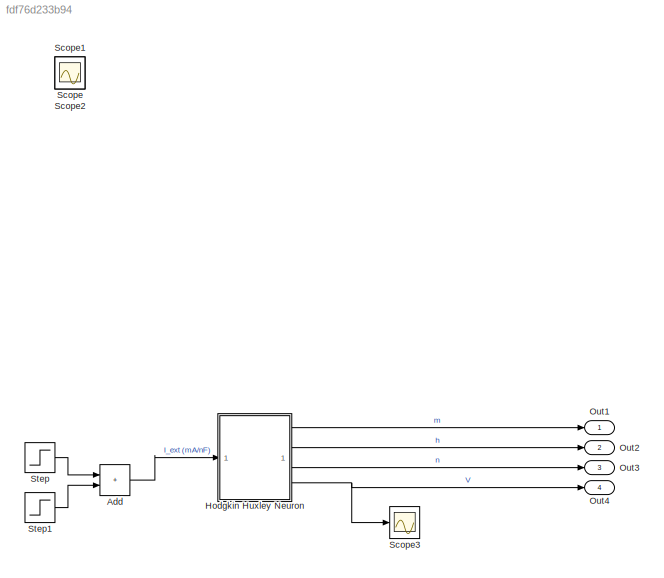
MODEL slx_fdf76d233b94
KIND model
CONFIG AbsTol = auto
CONFIG EnableMultiTasking = off
CONFIG FixedStep = auto
CONFIG MaxStep = auto
CONFIG MinStep = auto
CONFIG RelTol = 1e-3
CONFIG SampleTimeConstraint = Unconstrained
CONFIG SolverName = VariableStepAuto
CONFIG StartTime = 0.0
CONFIG StopTime = 600e-3
BLOCK [Sum] Add
  IconShape = rectangular
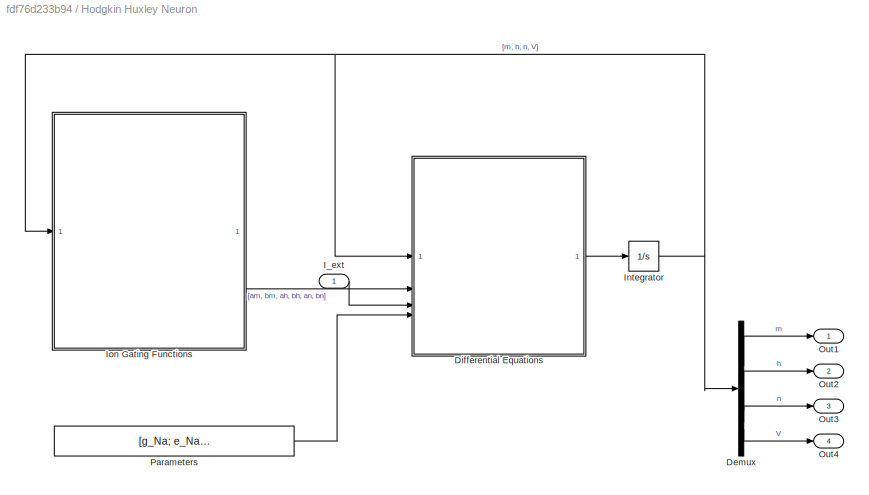
BLOCK [SubSystem] Hodgkin Huxley Neuron
  TreatAsAtomicUnit = on
BLOCK [Demux] Hodgkin Huxley Neuron/Demux
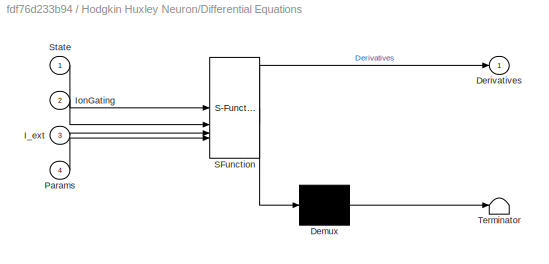
BLOCK [SubSystem] Hodgkin Huxley Neuron/Differential Equations
  ErrorFcn = Stateflow.Translate.translate
  LibrarySourceBlock = simulink/User-Defined\nFunctions/MATLAB Function
  PermitHierarchicalResolution = ExplicitOnly
  SFBlockType = MATLAB Function
  TreatAsAtomicUnit = on
BLOCK [Demux] Hodgkin Huxley Neuron/Differential Equations/ Demux 
  Outputs = 1
BLOCK [S-Function] Hodgkin Huxley Neuron/Differential Equations/ SFunction 
  EnableBusSupport = on
  FunctionName = sf_sfun
  PortCounts = [4 2]
  SFcnIsStateOwnerBlock = off
  SFunctionDeploymentMode = off
  Tag = Stateflow S-Function 1
BLOCK [Terminator] Hodgkin Huxley Neuron/Differential Equations/ Terminator 
BLOCK [Outport] Hodgkin Huxley Neuron/Differential Equations/Derivatives
BLOCK [Inport] Hodgkin Huxley Neuron/Differential Equations/I_ext
  Port = 3
BLOCK [Inport] Hodgkin Huxley Neuron/Differential Equations/IonGating
  Port = 2
BLOCK [Inport] Hodgkin Huxley Neuron/Differential Equations/Params
  Port = 4
BLOCK [Inport] Hodgkin Huxley Neuron/Differential Equations/State
BLOCK [Inport] Hodgkin Huxley Neuron/I_ext
BLOCK [Integrator] Hodgkin Huxley Neuron/Integrator
  InitialCondition = [m0 h0 n0 V0]
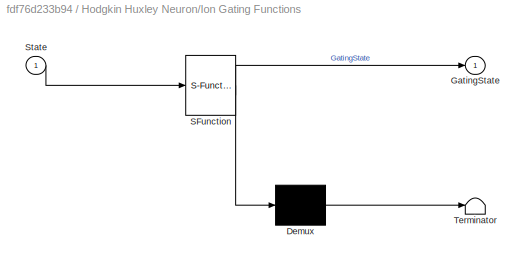
BLOCK [SubSystem] Hodgkin Huxley Neuron/Ion Gating Functions
  ErrorFcn = Stateflow.Translate.translate
  PermitHierarchicalResolution = ExplicitOnly
  SFBlockType = MATLAB Function
  TreatAsAtomicUnit = on
BLOCK [Demux] Hodgkin Huxley Neuron/Ion Gating Functions/ Demux 
  Outputs = 1
BLOCK [S-Function] Hodgkin Huxley Neuron/Ion Gating Functions/ SFunction 
  EnableBusSupport = on
  FunctionName = sf_sfun
  PortCounts = [1 2]
  SFcnIsStateOwnerBlock = off
  SFunctionDeploymentMode = off
  Tag = Stateflow S-Function 2
BLOCK [Terminator] Hodgkin Huxley Neuron/Ion Gating Functions/ Terminator 
BLOCK [Outport] Hodgkin Huxley Neuron/Ion Gating Functions/GatingState
  VectorParamsAs1DForOutWhenUnconnected = off
BLOCK [Inport] Hodgkin Huxley Neuron/Ion Gating Functions/State
BLOCK [Outport] Hodgkin Huxley Neuron/Out1
BLOCK [Outport] Hodgkin Huxley Neuron/Out2
  Port = 2
BLOCK [Outport] Hodgkin Huxley Neuron/Out3
  Port = 3
BLOCK [Outport] Hodgkin Huxley Neuron/Out4
  Port = 4
BLOCK [Constant] Hodgkin Huxley Neuron/Parameters
  Value = [g_Na; e_Na; g_K; e_K; g_L; e_L]
BLOCK [Outport] Out1
  SignalName = m
BLOCK [Outport] Out2
  Port = 2
  SignalName = h
BLOCK [Outport] Out3
  Port = 3
  SignalName = n
BLOCK [Outport] Out4
  Port = 4
  SignalName = V (mV)
BLOCK [Scope] Scope
  Floating = off
  IOType = viewer
  NumInputPorts = 1
  ScopeSpecificationString = Simulink.scopes.TimeScopeBlockCfg('CurrentConfiguration', extmgr.ConfigurationSet(extmgr.Configuration('Core','General UI',true),extmgr.Configuration('Core','Source UI',true),extmgr.Configuration('Sources','WiredSimulink',true),extmgr.Configuration('Visuals','Time Domain',true,'SerializedDisplays',{struct('MinYLimReal','-110295.27373','MaxYLimReal','319563.83247','YLabelReal','','MinYLimMag','    ...<+1505ch>
BLOCK [Scope] Scope1
  Floating = off
  IOType = viewer
  NumInputPorts = 1
  ScopeSpecificationString = Simulink.scopes.TimeScopeBlockCfg('CurrentConfiguration', extmgr.ConfigurationSet(extmgr.Configuration('Core','General UI',true),extmgr.Configuration('Core','Source UI',true),extmgr.Configuration('Sources','WiredSimulink',true,'DataLoggingVariableName','ScopeData1'),extmgr.Configuration('Visuals','Time Domain',true,'SerializedDisplays',{struct('MinYLimReal','-0.97982','MaxYLimReal','8.82236','YLab...<+1585ch>
BLOCK [Scope] Scope2
  Floating = off
  IOType = viewer
  NumInputPorts = 1
  ScopeSpecificationString = Simulink.scopes.TimeScopeBlockCfg('CurrentConfiguration', extmgr.ConfigurationSet(extmgr.Configuration('Core','General UI',true),extmgr.Configuration('Core','Source UI',true),extmgr.Configuration('Sources','WiredSimulink',true,'DataLoggingVariableName','ScopeData2'),extmgr.Configuration('Visuals','Time Domain',true,'SerializedDisplays',{struct('MinYLimReal','-24.95995','MaxYLimReal','117.65171','Y...<+1412ch>
BLOCK [Scope] Scope3
  Floating = off
  NumInputPorts = 1
  ScopeSpecificationString = Simulink.scopes.TimeScopeBlockCfg('CurrentConfiguration', extmgr.ConfigurationSet(extmgr.Configuration('Core','General UI',true),extmgr.Configuration('Core','Source UI',true),extmgr.Configuration('Sources','WiredSimulink',true,'DataLoggingVariableName','ScopeData1'),extmgr.Configuration('Visuals','Time Domain',true,'SerializedDisplays',{struct('MinYLimReal','-24.95995','MaxYLimReal','117.65171','Y...<+1370ch>
BLOCK [Step] Step
  After = 4
  SampleTime = 0
  Time = 250e-3
BLOCK [Step] Step1
  After = -4
  SampleTime = 0
  Time = 350e-3
LINE Add:1 -> Hodgkin Huxley Neuron:1
LINE Hodgkin Huxley Neuron/Demux:1 -> Hodgkin Huxley Neuron/Out1:1
LINE Hodgkin Huxley Neuron/Demux:2 -> Hodgkin Huxley Neuron/Out2:1
LINE Hodgkin Huxley Neuron/Demux:3 -> Hodgkin Huxley Neuron/Out3:1
LINE Hodgkin Huxley Neuron/Demux:4 -> Hodgkin Huxley Neuron/Out4:1
LINE Hodgkin Huxley Neuron/Differential Equations:1 -> Hodgkin Huxley Neuron/Integrator:1
LINE Hodgkin Huxley Neuron/I_ext:1 -> Hodgkin Huxley Neuron/Differential Equations:3
NET Hodgkin Huxley Neuron/Integrator:1 -> Hodgkin Huxley Neuron/Demux:1, Hodgkin Huxley Neuron/Differential Equations:1, Hodgkin Huxley Neuron/Ion Gating Functions:1
LINE Hodgkin Huxley Neuron/Ion Gating Functions:1 -> Hodgkin Huxley Neuron/Differential Equations:2
LINE Hodgkin Huxley Neuron/Parameters:1 -> Hodgkin Huxley Neuron/Differential Equations:4
LINE Hodgkin Huxley Neuron:1 -> Out1:1
LINE Hodgkin Huxley Neuron:2 -> Out2:1
LINE Hodgkin Huxley Neuron:3 -> Out3:1
NET Hodgkin Huxley Neuron:4 -> Out4:1, Scope3:1
LINE Step1:1 -> Add:2
LINE Step:1 -> Add:1
note: NET lines group one-source signal fan-out (src -> all destinations, sorted); 1:1 wires keep LINE
CHART Hodgkin Huxley Neuron/Differential Equations states=1 transitions=1
  STATE_LABEL 'eML_blk_kernel()'
  STATE_LABEL 'SCRIPT:\nfunction Derivatives = ODE(State, IonGating, I_ext, Params)\n    am = IonGating(1);\n    bm = IonGating(2);\n    ah = IonGating(3);\n    bh = IonGating(4);\n    an = IonGating(5);\n    bn = IonGating(6);\n\n    m = State(1);\n    h = State(2);\n    n = State(3);\n    v = State(4);\n\n    g_Na = Params(1);  \n    e_Na = Params(2);  \n    g_K = Params(3);   \n    e_K = Params(4);  \n    g_L = Params(5);     ...<+293ch>'
CHART Hodgkin Huxley Neuron/Ion Gating Functions states=1 transitions=1
  STATE_LABEL 'eML_blk_kernel()'
  STATE_LABEL 'SCRIPT:\nfunction GatingState = AlphaBeta(State)\n\nV = State(4);\n\nam = (2.5-0.1*V) / (exp(2.5-0.1*V) -1);\nbm = 4*exp(-V/18);\nah = 0.07*exp(-V/20);\nbh = 1/(exp(3.0-0.1*V)+1);\nan = (0.1-0.01*V) / (exp(1-0.1*V) -1);\nbn = 0.125*exp(-V/80);\n\nGatingState = [am, bm, ah, bh, an, bn];\nend'
CHART  states=0 transitions=0
CHART  states=0 transitions=0
